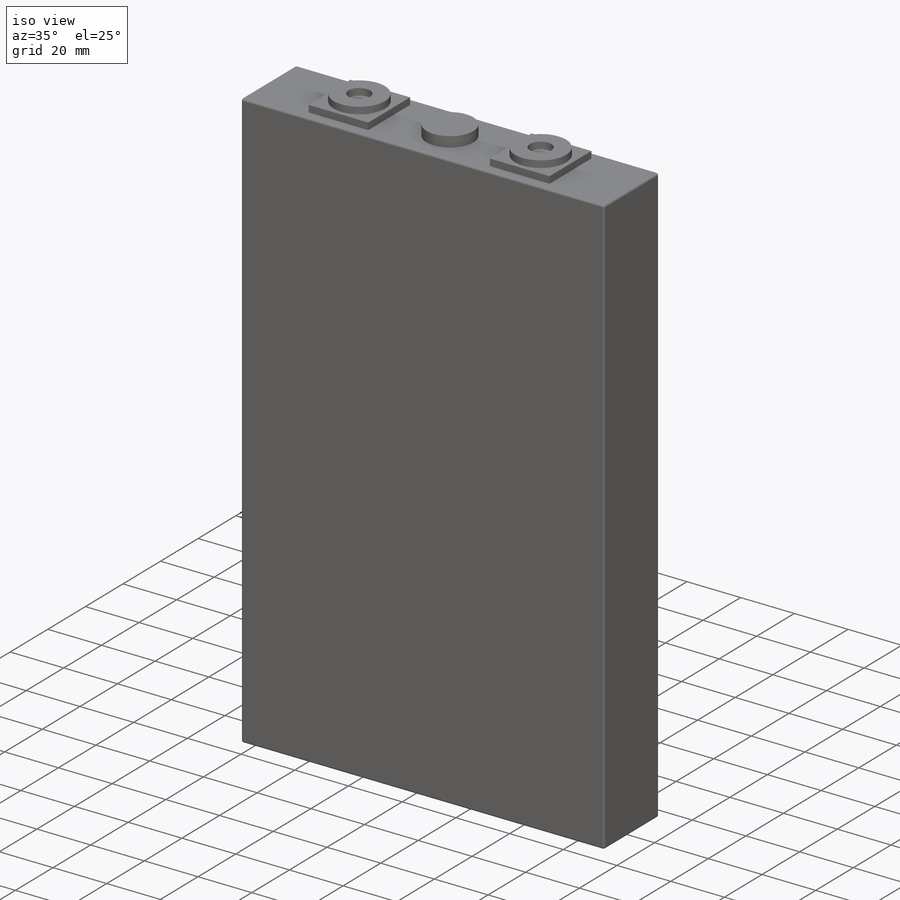
[diagram: iso view]
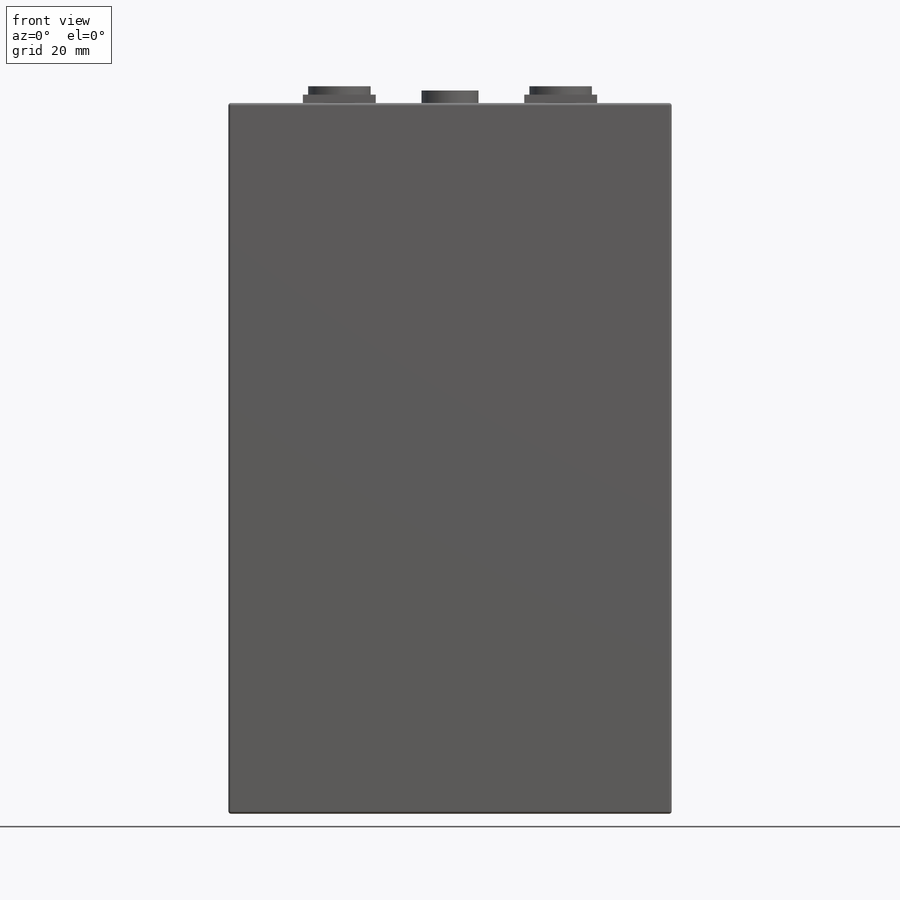
[diagram: front view]
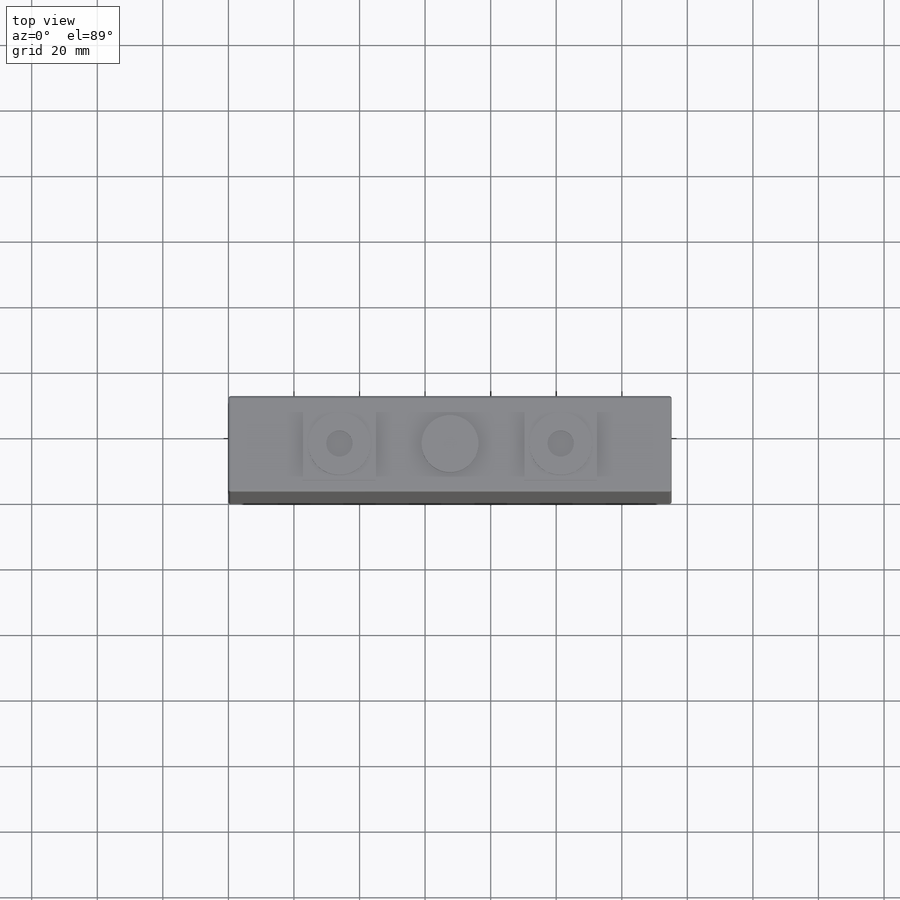
[diagram: top view]
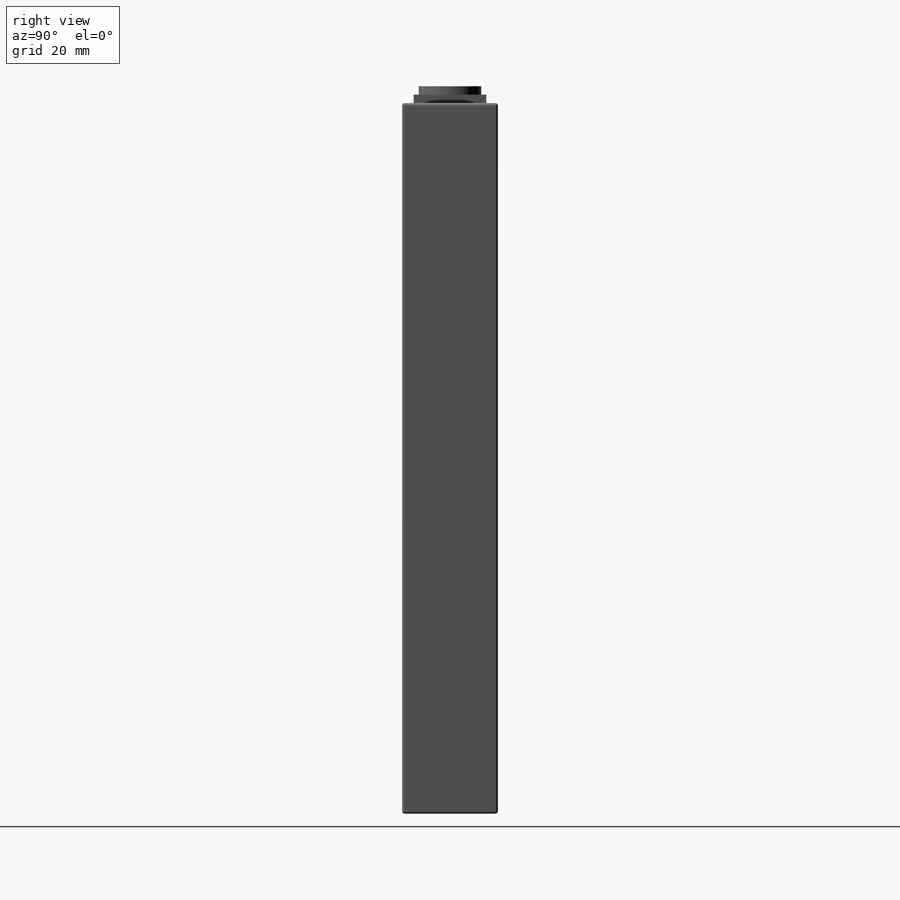
[diagram: right view]
SOLIDWORKS PART (.sldprt)
format: sldprt  version: not decoded by parser v0  size: 198,656 bytes
history: native  units: mm
features: sketch x4, extrude x4, material x1, fillet x1 (+16 scaffold rows collapsed)
feature tree (26):
  scaffold x16  (default folders/planes/origin — collapsed)
  material  "Material <not specified>"
  sketch  "Sketch1"  dims[D1=135.2mm D2=29.2mm]
  extrude  "Boss-Extrude1"  Depth=216.8mm
  sketch  "Sketch2"  dims[D1=67.5mm D2=22.225mm D3=22.225mm D4=22.225mm D5=22.225mm]
  extrude  "Boss-Extrude2"  Depth=2.54mm
  sketch  "Sketch4"  dims[D1=8.0mm D2=19.05mm D3=19.05mm D4=8.0mm]
  extrude  "Boss-Extrude3"  Depth=2.54mm
  sketch  "Sketch5"
  extrude  "Boss-Extrude4"  Depth=3.81mm
  fillet  "Fillet1"  Radius=0.762mm
decode coverage: 8 of 9 modeling features carry decoded parameters
note: suppression state not decoded; provenance and decode notes live in map.json
